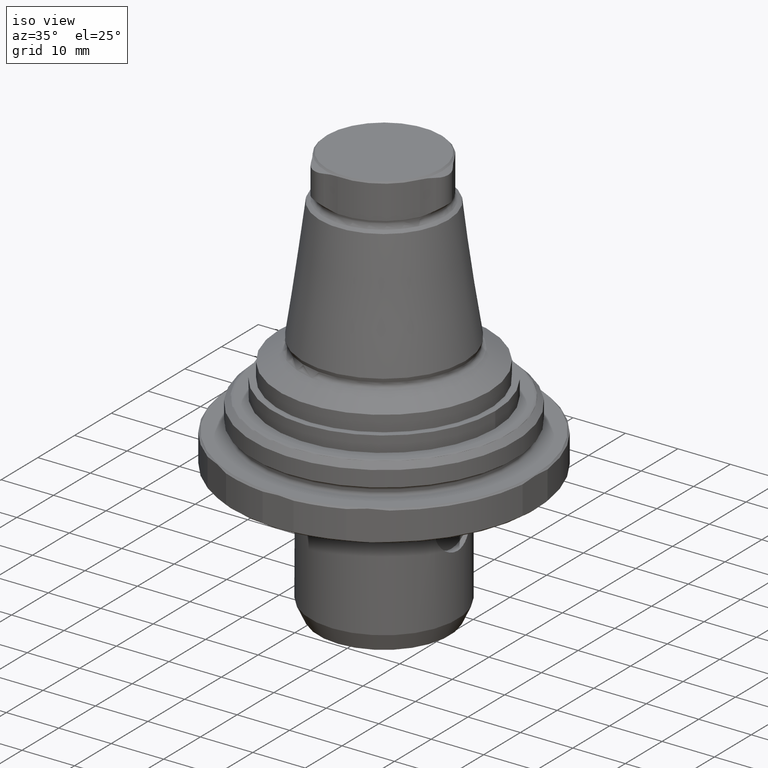
[diagram: clean part render]
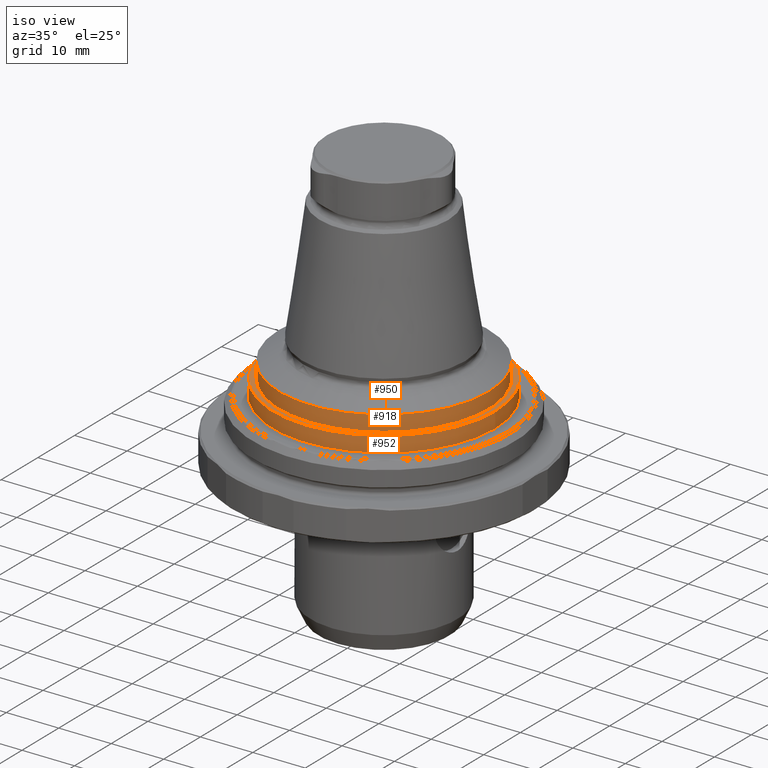
[diagram: same view with one multi-face feature highlighted, each face labeled with its STEP entity id]
A machine part, iso view. The highlighted faces form ONE feature: a stepped (counterbored) hole: 2 coaxial cylindrical walls of radii 20 -> 21.2 mm joined by 1 annular planar shoulder face(s). The faces share edges in the B-rep.
Their STEP definitions:
[1] entity #952 (Cylinder):
#144=CIRCLE('',#1060,21.2);
#146=CIRCLE('',#1064,21.2);
#302=ORIENTED_EDGE('',*,*,#493,.T.);
#303=ORIENTED_EDGE('',*,*,#495,.T.);
#493=EDGE_CURVE('',#602,#602,#144,.T.);
#495=EDGE_CURVE('',#604,#604,#146,.T.);
#602=VERTEX_POINT('',#1667);
#604=VERTEX_POINT('',#1673);
#742=EDGE_LOOP('',(#302));
#743=EDGE_LOOP('',(#303));
#842=FACE_BOUND('',#742,.T.);
#843=FACE_BOUND('',#743,.T.);
#905=CYLINDRICAL_SURFACE('',#1063,21.2);
#952=ADVANCED_FACE('',(#842,#843),#905,.T.);
#1060=AXIS2_PLACEMENT_3D('',#1666,#1261,#1262);
#1063=AXIS2_PLACEMENT_3D('',#1671,#1267,#1268);
#1064=AXIS2_PLACEMENT_3D('',#1672,#1269,#1270);
#1261=DIRECTION('',(-5.2112629750951E-18,6.90472121537616E-17,-1.));
#1262=DIRECTION('',(-1.,6.12303176911188E-17,1.08491142720197E-17));
#1267=DIRECTION('',(5.21126297509512E-18,-7.81689446264269E-18,1.));
#1268=DIRECTION('',(1.,-6.12303176911188E-17,-1.08491142720197E-17));
#1269=DIRECTION('',(5.21126297509514E-18,5.34134232284762E-17,1.));
#1270=DIRECTION('',(1.,-6.12303176911188E-17,-1.08491142720197E-17));
#1666=CARTESIAN_POINT('',(5.42669784243092E-15,-2.3450683387928E-17,8.));
#1667=CARTESIAN_POINT('',(-21.2,1.27463205166379E-15,8.));
#1671=CARTESIAN_POINT('',(5.41888094796828E-15,-1.1725341693964E-17,6.5));
#1672=CARTESIAN_POINT('',(5.41106405350563E-15,2.93338296965569E-32,5.));
#1673=CARTESIAN_POINT('',(21.2,-1.29808273505172E-15,5.));
[2] entity #918 (Cylinder):
#118=CIRCLE('',#1002,20.);
#119=CIRCLE('',#1003,20.);
#177=ORIENTED_EDGE('',*,*,#431,.T.);
#178=ORIENTED_EDGE('',*,*,#432,.F.);
#431=EDGE_CURVE('',#558,#558,#118,.T.);
#432=EDGE_CURVE('',#559,#559,#119,.F.);
#558=VERTEX_POINT('',#1451);
#559=VERTEX_POINT('',#1453);
#693=EDGE_LOOP('',(#177));
#694=EDGE_LOOP('',(#178));
#793=FACE_BOUND('',#693,.T.);
#794=FACE_BOUND('',#694,.T.);
#890=CYLINDRICAL_SURFACE('',#1001,20.);
#918=ADVANCED_FACE('',(#793,#794),#890,.T.);
#1001=AXIS2_PLACEMENT_3D('',#1449,#1131,#1132);
#1002=AXIS2_PLACEMENT_3D('',#1450,#1133,#1134);
#1003=AXIS2_PLACEMENT_3D('',#1452,#1135,#1136);
#1131=DIRECTION('',(1.27319154200133E-16,-7.79579225983867E-33,-1.));
#1132=DIRECTION('',(-1.,6.12303176911189E-17,-1.27319154200133E-16));
#1133=DIRECTION('',(1.27319154200133E-16,-7.79579225983867E-33,-1.));
#1134=DIRECTION('',(-1.,6.12303176911189E-17,-1.27319154200133E-16));
#1135=DIRECTION('',(5.2112629750951E-18,-6.90472121537616E-17,1.));
#1136=DIRECTION('',(0.,-1.,-6.90472121537616E-17));
#1449=CARTESIAN_POINT('',(0.,0.,47.5));
#1450=CARTESIAN_POINT('',(4.64714912830484E-15,-2.84546417484111E-31,11.));
#1451=CARTESIAN_POINT('',(-20.,1.22460635382238E-15,11.));
#1452=CARTESIAN_POINT('',(5.02910659090524E-15,-3.07933794263627E-31,8.));
#1453=CARTESIAN_POINT('',(5.02910659090524E-15,-20.,8.));
[3] entity #950 (Plane):
#99=PLANE('',#1059);
#119=CIRCLE('',#1003,20.);
#144=CIRCLE('',#1060,21.2);
#298=ORIENTED_EDGE('',*,*,#493,.F.);
#299=ORIENTED_EDGE('',*,*,#432,.T.);
#432=EDGE_CURVE('',#559,#559,#119,.F.);
#493=EDGE_CURVE('',#602,#602,#144,.T.);
#559=VERTEX_POINT('',#1453);
#602=VERTEX_POINT('',#1667);
#738=EDGE_LOOP('',(#298));
#739=EDGE_LOOP('',(#299));
#838=FACE_BOUND('',#738,.T.);
#839=FACE_BOUND('',#739,.T.);
#950=ADVANCED_FACE('',(#838,#839),#99,.T.);
#1003=AXIS2_PLACEMENT_3D('',#1452,#1135,#1136);
#1059=AXIS2_PLACEMENT_3D('',#1665,#1259,#1260);
#1060=AXIS2_PLACEMENT_3D('',#1666,#1261,#1262);
#1135=DIRECTION('',(5.2112629750951E-18,-6.90472121537616E-17,1.));
#1136=DIRECTION('',(0.,-1.,-6.90472121537616E-17));
#1259=DIRECTION('',(5.2112629750951E-18,-6.90472121537616E-17,1.));
#1260=DIRECTION('',(2.8327492261615E-16,1.,6.90472121537612E-17));
#1261=DIRECTION('',(-5.2112629750951E-18,6.90472121537616E-17,-1.));
#1262=DIRECTION('',(-1.,6.12303176911188E-17,1.08491142720197E-17));
#1452=CARTESIAN_POINT('',(5.02910659090524E-15,-3.07933794263627E-31,8.));
#1453=CARTESIAN_POINT('',(5.02910659090524E-15,-20.,8.));
#1665=CARTESIAN_POINT('',(5.42669784243092E-15,-2.3450683387928E-17,8.));
#1666=CARTESIAN_POINT('',(5.42669784243092E-15,-2.3450683387928E-17,8.));
#1667=CARTESIAN_POINT('',(-21.2,1.27463205166379E-15,8.));